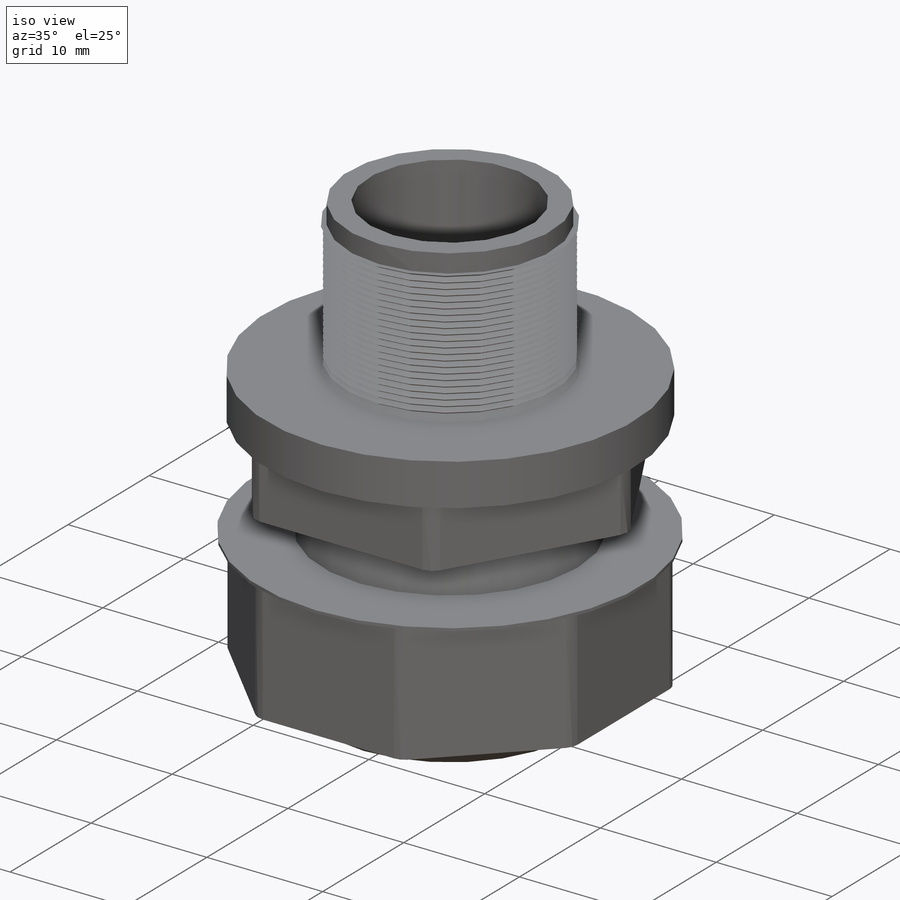
[diagram: iso view]
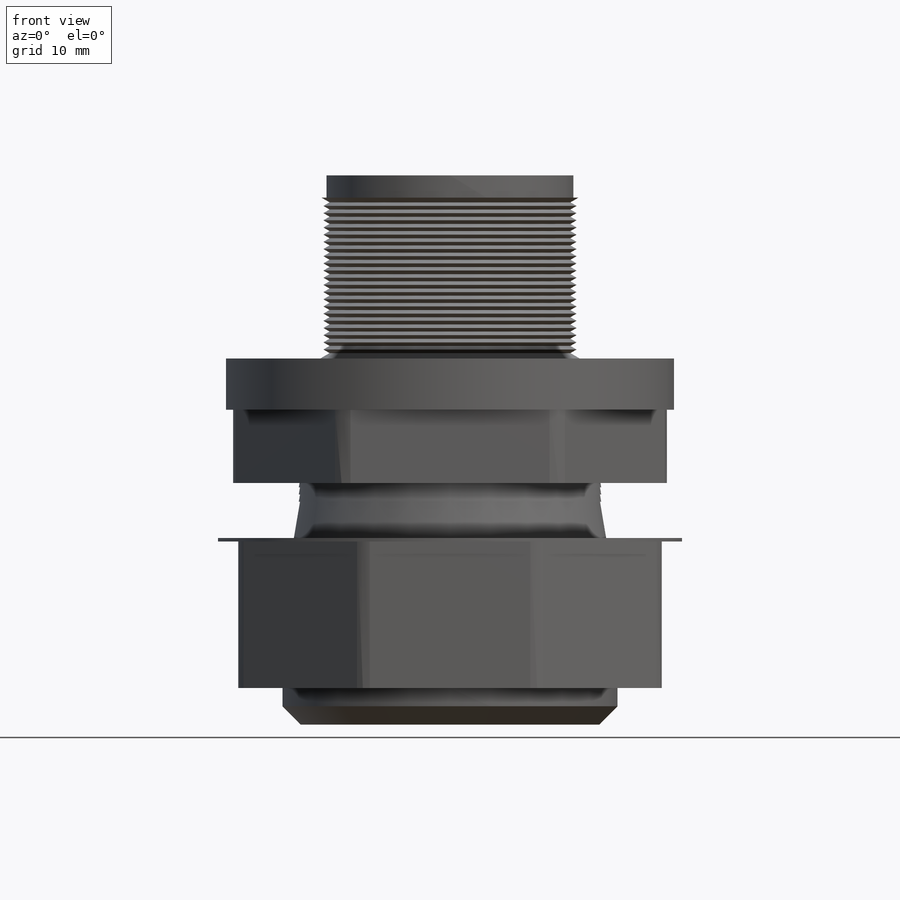
[diagram: front view]
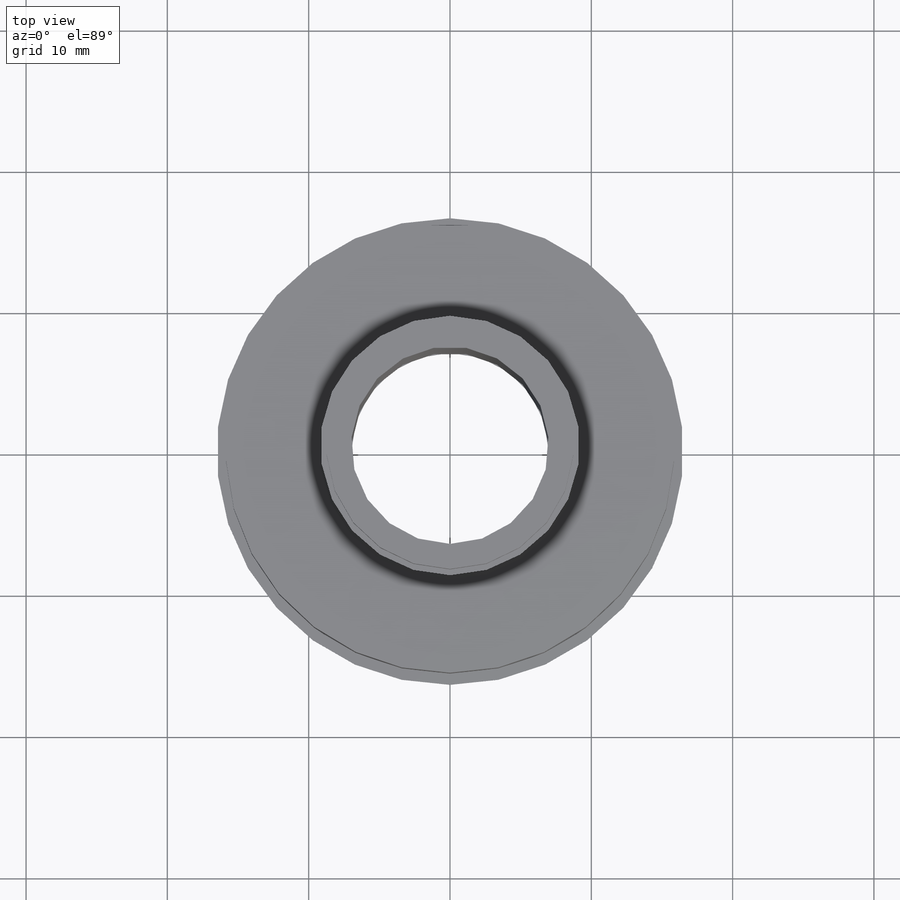
[diagram: top view]
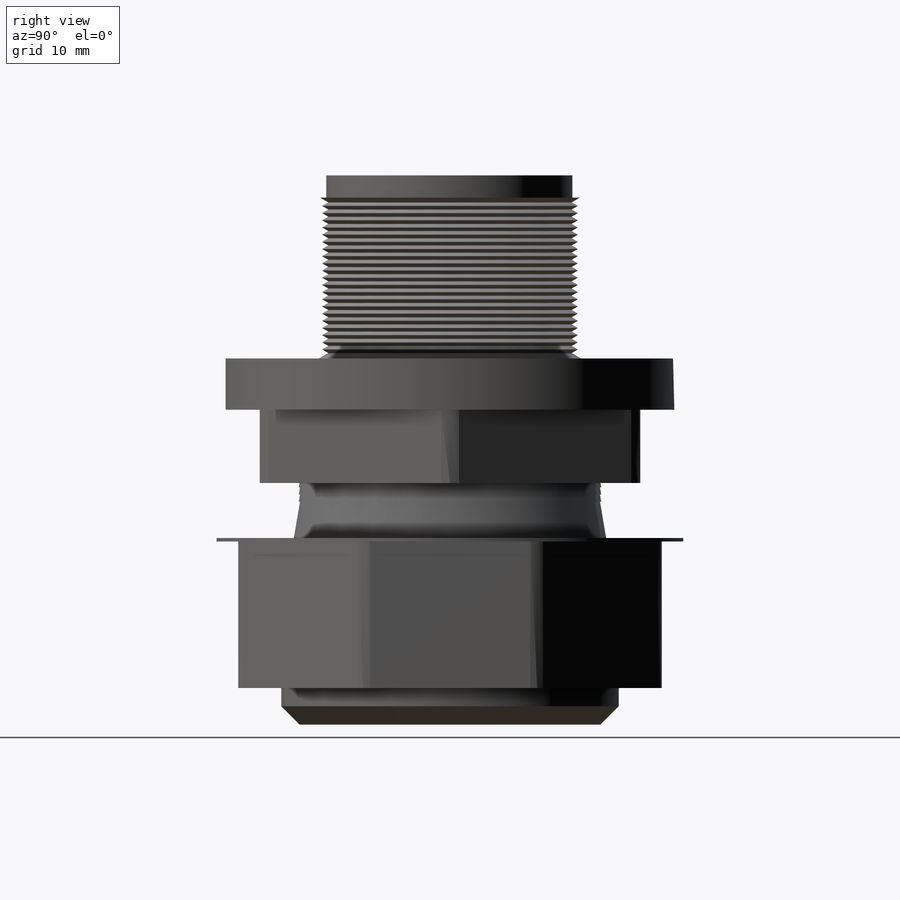
[diagram: right view]
SOLIDWORKS PART (.sldprt)
format: sldprt  version: not decoded by parser v0  size: 968,192 bytes
history: native  units: mm
features: sketch x17, cut_extrude x4, fillet x4, cut_revolve x4, pattern_linear x4, extrude x3, revolve x2, sweep x2, material x1, mirror x1 + 1 further entry (+16 scaffold rows collapsed; 2 parser-record rows omitted)
feature tree (61):
  scaffold x16  (default folders/planes/origin — collapsed)
  material  "Material <not specified>"
  "Design Table"
  sketch  "Sketch1"  dims[c1.D1=82.55mm c1..65B=16.8402mm c1.C=17.78mm c1..6B=15.5448mm c1.D3=~1.328278mm c2.D3=135.0deg c2.D4=11.049mm c2.D2=22.098mm c2..1B=2.5908mm c3.D3=~3.084174mm c4.D3=45.0deg c4.D2=22.098mm c5.D3=~0.544864mm c6.D3=135.0deg c7.D3=~0.750536mm c8.D3=135.0deg c8.D2=23.876mm c8.D4=1.2954mm c8.D5=13.97mm]
  revolve  "Revolve1"  Angle=360deg
  sketch  "Sketch2"  dims[D1=72.898mm]
  sketch  "Sketch20"  dims[D1=~4.509477mm]
  cut_extrude  "Cut-Extrude5"  Depth=13.0048mm
  parser-record x2  (decoder bookkeeping rows leaked as tree rows — omitted from the tree; the rows remain in map.json)
  cut_extrude  "Cut-Extrude1"  Depth=12.954mm
  sketch  "Sketch3"  dims[c1.D5=~0.047625mm c1.D1=7.874mm c1.D2=76.2mm c1.D3=17.78mm c1.D4=12.446mm c2.D5=~0.047625mm c3.D5=135.0deg c3.D6=50.038mm c3.D7=11.938mm c3.D8=~0.047625mm c4.D8=~22.00275mm c4.D5=2.5908mm c5.D8=11.2014mm c5.D9=1.5748mm c6.D8=0.5mm c6.D3=3.8862mm c6.D5=63.5mm c6.D1=51.562mm c6.D10=0.5mm c7.D10=90.0deg c7.D8=0.5mm c8.D8=90.0deg c8.D4=60.96mm c9.D8=6.2992mm c10.D8=0.018deg c10.D10=0.508mm]
  revolve  "Revolve2"  Angle=360deg
  sketch  "Sketch4"  dims[D1=65.024mm]
  cut_extrude  "Cut-Extrude3"  Depth=28.0416mm
  fillet  "Fillet5"  Radius=1.27mm
  fillet  "Fillet6"  Radius=1.27mm
  sketch  "Sketch7"  dims[c1.D1=60.0deg c1.D2=60.0deg c1.D3=0.508mm c2.D1=~0.439941mm c3.D1=300.0deg c3.D2=~0.259068mm c4.D1=~0.439897mm c4.D2=~0.439897mm c5.D2=60.0deg c5.D1=~0.439897mm c5.D3=63.5mm]
  cut_revolve  "Cut-Revolve2"  Angle=360deg
  pattern_linear  "LPattern1"  Count1=5 Count2=1 Spacing1=0.508mm Spacing2=50mm
  sketch  "Sketch8"  dims[c1.D1=~1.366547mm c2.D1=60.0deg c2.D2=~1.366547mm c3.D2=30.0deg c4.D2=~1.366547mm c5.D2=60.0deg c5.D3=0.762mm]
  cut_revolve  "Cut-Revolve3"  Angle=360deg
  pattern_linear  "LPattern2"  Count1=20 Count2=1 Spacing1=0.508mm Spacing2=50mm
  sketch  "Sketch12"  dims[D1=23.876mm]
  cut_extrude  "Cut-Extrude4"  Depth=12.954mm
  sketch  "Sketch10"  dims[D1=~4.183469mm]
  extrude  "Extrude1"  Depth=2.5908mm
  fillet  "Fillet4"  Radius=1.27mm
  sketch  "Sketch18"  dims[c1.D1=~0.310306mm c2.D1=60.0deg c2.D2=~0.438839mm c3.D2=30.0deg c4.D2=~0.438839mm c5.D2=60.0deg c5.D3=0.508mm]
  cut_revolve  "Cut-Revolve5"  Angle=360deg
  pattern_linear  "LPattern5"  Count1=5 Count2=1 Spacing1=0.508mm Spacing2=50mm
  sketch  "Sketch13"  dims[c1.D4=1.27mm c1.D1=28.956mm c1.D2=64.008mm c1.D3=21.082mm c1.D5=~2.386698mm c1.D6=~8.74759mm c2.D6=110.0deg c2.D7=~30.01281mm c3.D7=135.0deg c4.D7=18.8214mm]
  extrude  "Extrude2"  Depth=23.876mm
  fillet  "Fillet2"  Radius=1.905mm
  sketch  "Sketch14"  dims[D1=18.542mm D2=~1.375169mm]
  extrude  "Extrude3"  Depth=7.874mm
  sketch  "Sketch16"  dims[D1=7.112mm D2=8.89mm]
  sketch  "Sketch17"  dims[c1.D1=20.32mm c1.D2=~1.116698mm c2.D1=23.9776mm c3.D1=94.0deg c3.D2=~1.914251mm c3.D3=~0.590855mm]
  sweep  "Cut-Sweep1"
  sketch  "Sketch15"  dims[c1.D1=~0.905345mm c2.D1=60.0deg c2.D2=~0.886812mm c3.D2=60.0deg c3.D3=0.762mm]
  cut_revolve  "Cut-Revolve4"  Angle=360deg
  pattern_linear  "LPattern4"  Count1=10 Count2=1 Spacing1=0.762mm Spacing2=50mm
  sketch  "Sketch19"  dims[c1.D1=1.27mm c1.D2=0.762mm c1.D3=2.032mm c1.D4=1.524mm c2.D1=2.032mm c2.D2=3.048mm c3.D1=2.032mm c3.D2=2.032mm c3.D4=10.16mm c3.D5=1.524mm c3.D6=10.414mm c3.D7=6.096mm]
  sweep  "Cut-Sweep3"
  sketch  "Sketch17<3>"
  mirror  "Mirror1"
decode coverage: 37 of 41 modeling features carry decoded parameters; 1 rows unclassified (native names shown)
note: ~ marks probable driven/reference dimensions
note: suppression state not decoded; provenance and decode notes live in map.json
